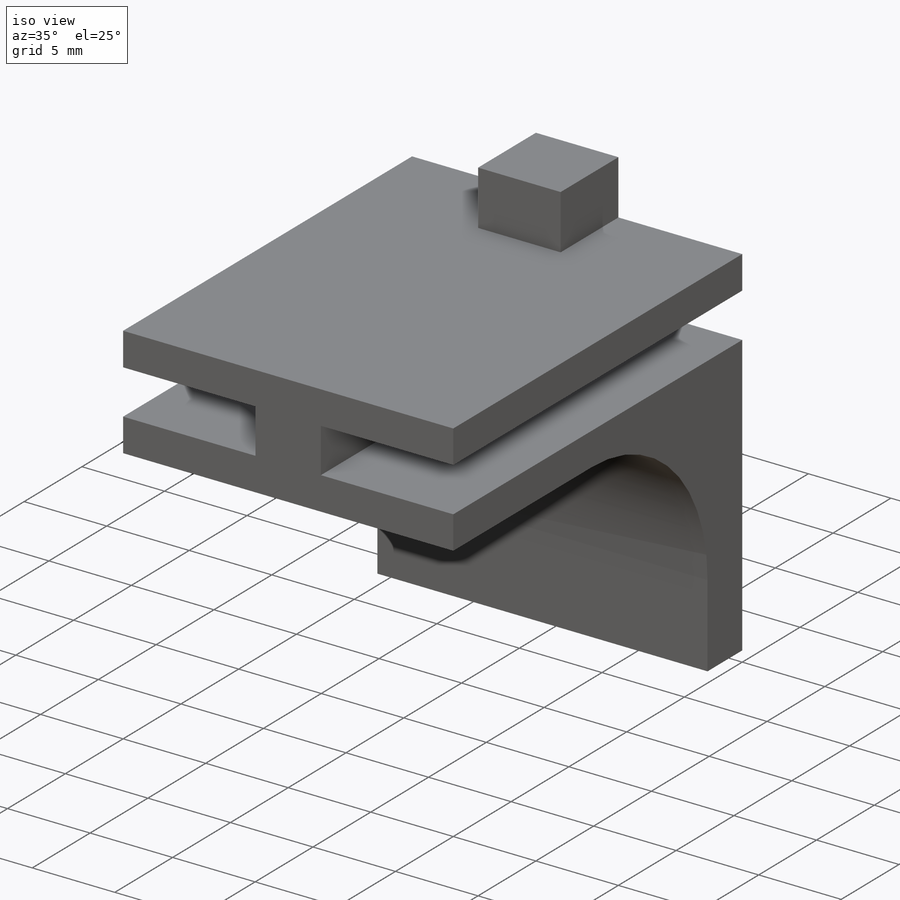
[diagram: iso view]
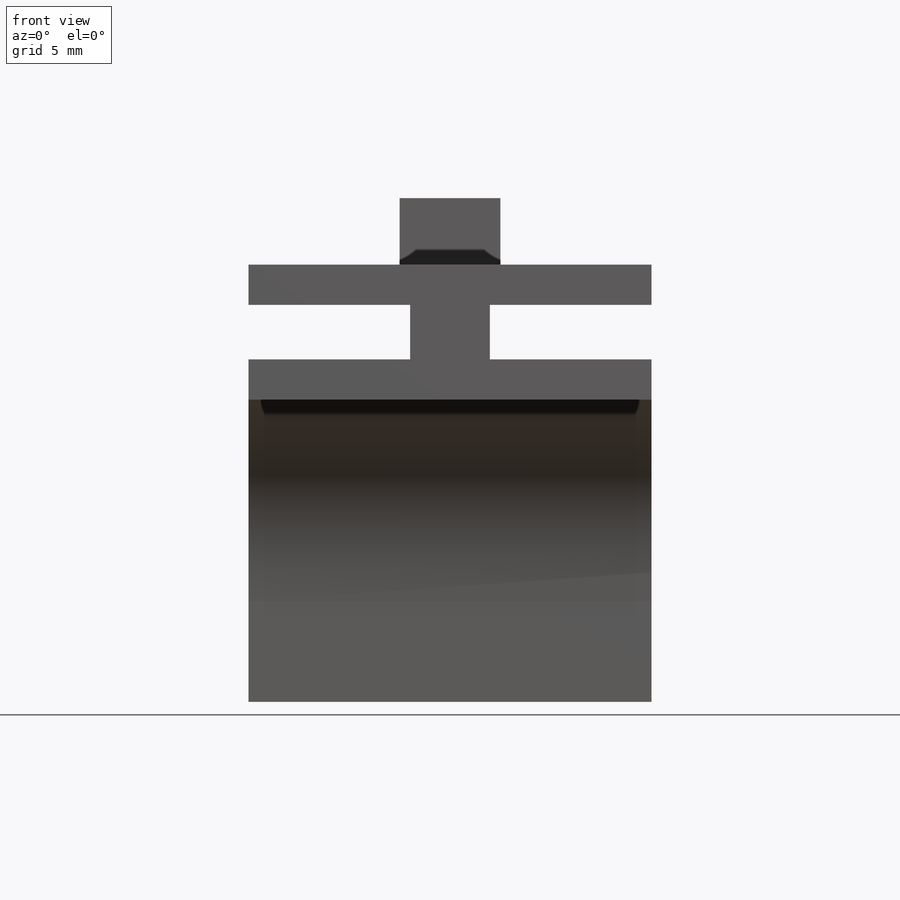
[diagram: front view]
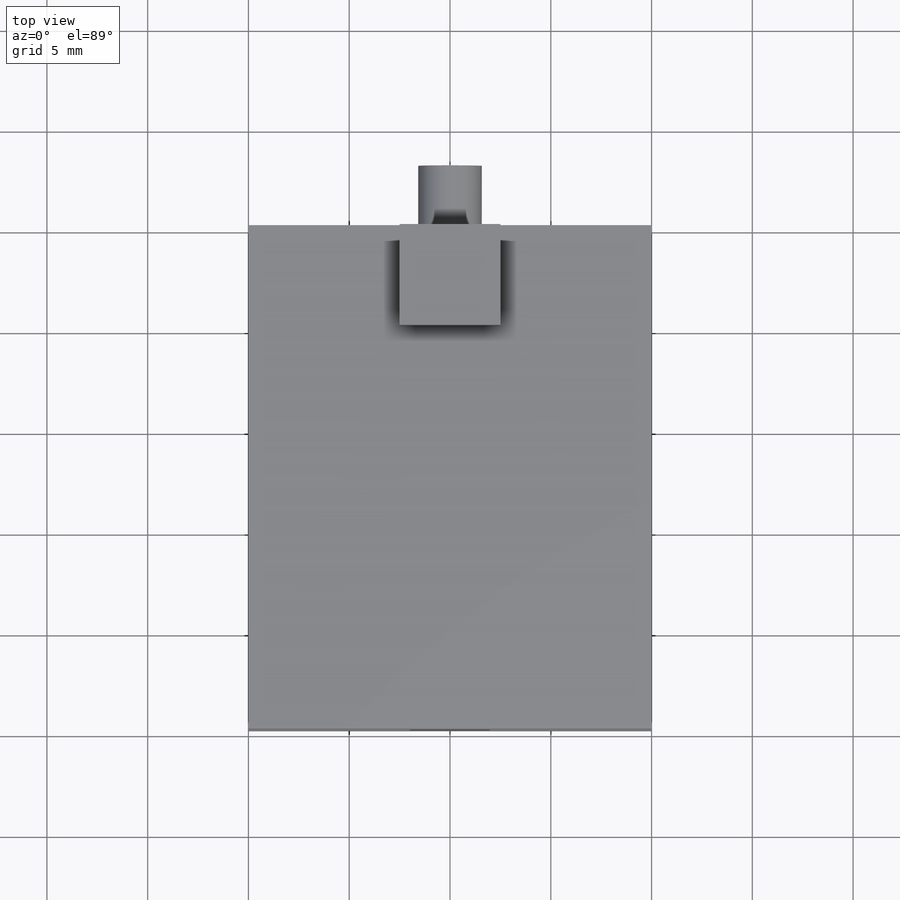
[diagram: top view]
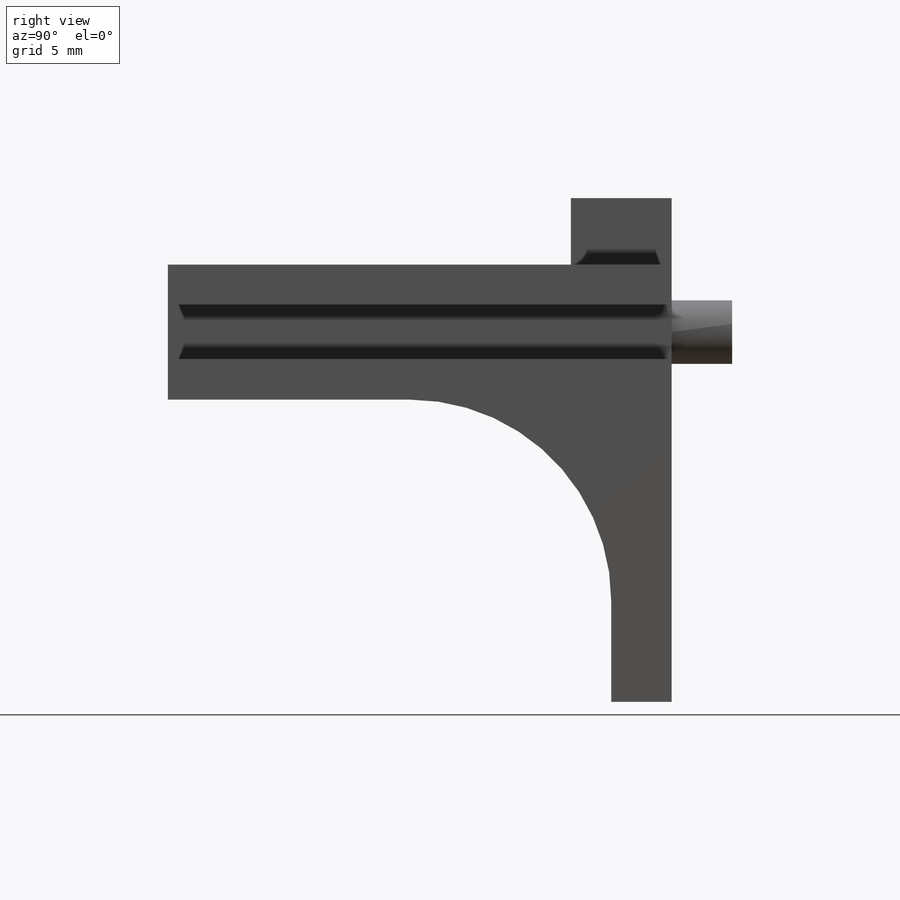
[diagram: right view]
SOLIDWORKS PART (.sldprt)
format: sldprt  version: not decoded by parser v0  size: 196,608 bytes
history: native  units: mm
features: sketch x4, extrude x4, material x1, fillet x1 (+12 scaffold rows collapsed)
feature tree (22):
  scaffold x12  (default folders/planes/origin — collapsed)
  material  "Material <not specified>"
  sketch  "Sketch1"  dims[D1=2.7mm D2=20.0mm D3=2.0mm D4=3.9624mm D5=~94.304865mm]
  extrude  "Boss-Extrude1"  Depth=25mm
  sketch  "Sketch2"  dims[D1=3.0mm]
  extrude  "Boss-Extrude2"  Depth=15mm
  fillet  "Fillet1"  Radius=10mm
  sketch  "Sketch3"  dims[D1=3.1496mm]
  extrude  "Boss-Extrude3"  Depth=3mm
  sketch  "Sketch4"  dims[D1=5.0mm D2=5.0mm]
  extrude  "Boss-Extrude4"  Depth=3.3mm
decode coverage: 9 of 9 modeling features carry decoded parameters
note: ~ marks probable driven/reference dimensions
note: suppression state not decoded; provenance and decode notes live in map.json
